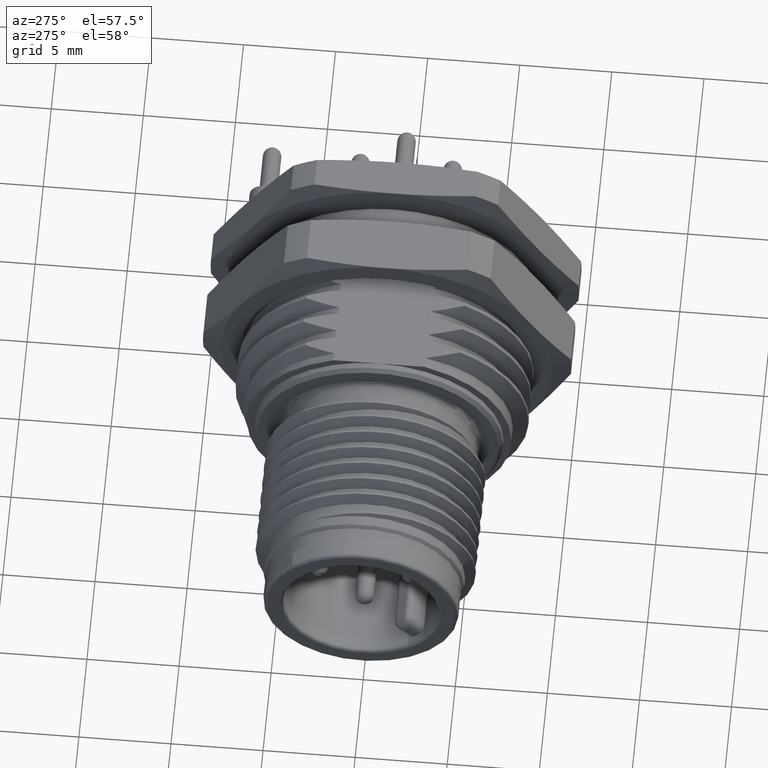
[diagram: clean part render]
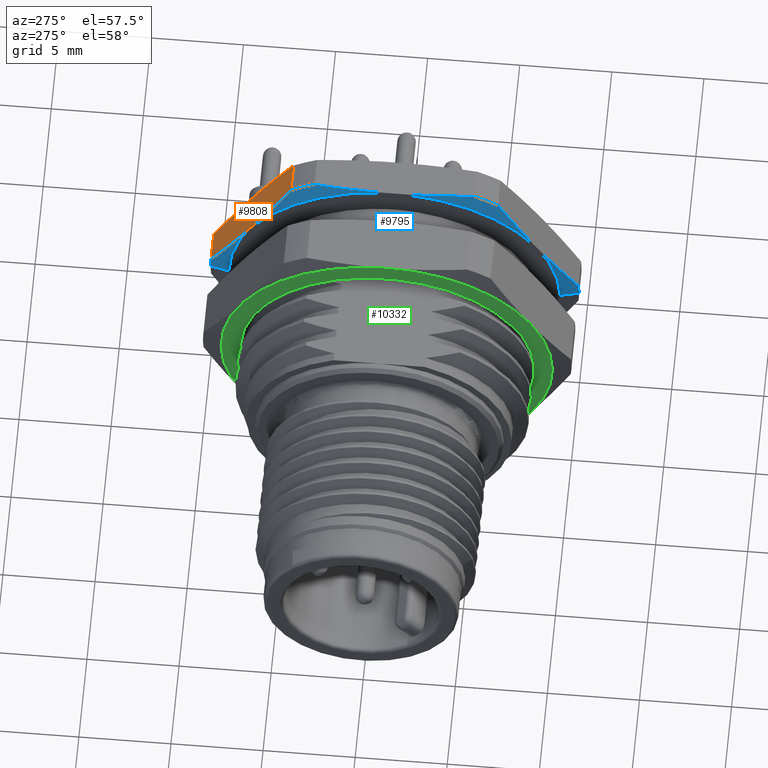
[diagram: same view with three faces highlighted in distinct colors, each labeled with its STEP entity id]
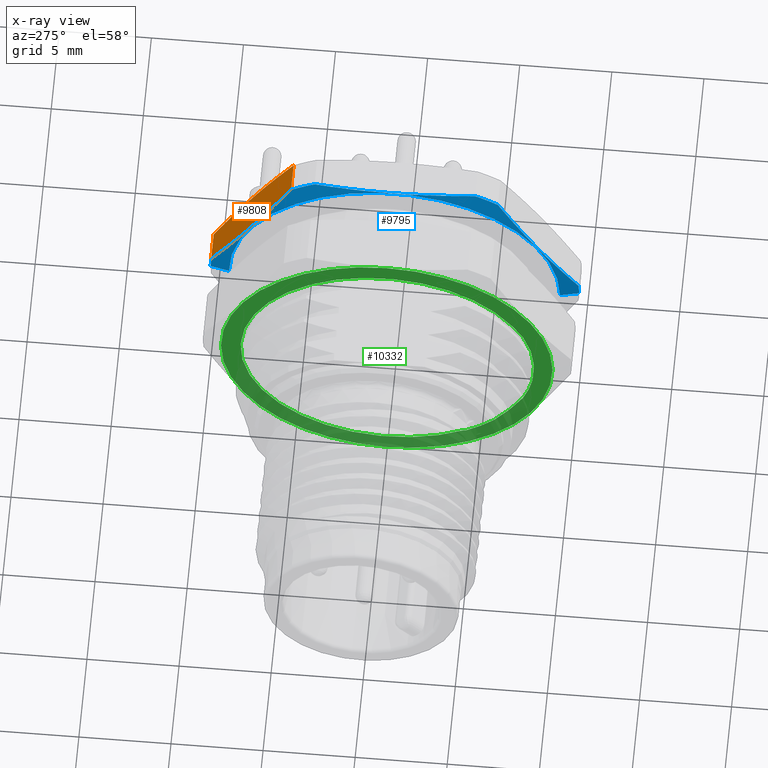
[diagram: x-ray of the same camera — body ghosted, the three highlighted faces saturated]
A machine part, auxiliary view with three faces highlighted in distinct colors.
The next image is the same camera in x-ray (body ghosted, the three faces saturated) — at least one of them is partly hidden behind the body in this view.
Their STEP definitions:

[orange] entity #9808 — the highlighted planar face has unit normal (0, 0.8665, 0.4991).
#953=CARTESIAN_POINT('',(2.118502262467E1,5.638446748229E0,8.258808525894E0));
#954=CARTESIAN_POINT('',(2.122353792520E1,5.846719437160E0,7.897214370785E0));
#955=CARTESIAN_POINT('',(2.129123251506E1,6.261869213681E0,7.176449044061E0));
#956=CARTESIAN_POINT('',(2.136102398915E1,6.876260174027E0,6.109769676001E0));
#957=CARTESIAN_POINT('',(2.139738849243E1,7.495355365573E0,5.034923022472E0));
#958=CARTESIAN_POINT('',(2.139738246194E1,8.116286912928E0,3.956888166346E0));
#959=CARTESIAN_POINT('',(2.136102823910E1,8.735195448974E0,2.882365576130E0));
#960=CARTESIAN_POINT('',(2.129124705241E1,9.349564330789E0,1.815724539873E0));
#961=CARTESIAN_POINT('',(2.122354646418E1,9.764766212043E0,1.094868751133E0));
#962=CARTESIAN_POINT('',(2.118502262467E1,9.973085075787E0,7.331944292832E-1));
#974=CARTESIAN_POINT('',(1.961497737533E1,9.973085075787E0,7.331944292832E-1));
#975=CARTESIAN_POINT('',(1.957645353601E1,9.764766213086E0,1.094868749321E0));
#976=CARTESIAN_POINT('',(1.950875294802E1,9.349564333624E0,1.815724534952E0));
#977=CARTESIAN_POINT('',(1.943897176132E1,8.735195453565E0,2.882365568158E0));
#978=CARTESIAN_POINT('',(1.940261753823E1,8.116286918461E0,3.956888156740E0));
#979=CARTESIAN_POINT('',(1.940261150739E1,7.495355371108E0,5.034923012862E0));
#980=CARTESIAN_POINT('',(1.943897601043E1,6.876260178620E0,6.109769668028E0));
#981=CARTESIAN_POINT('',(1.950876748451E1,6.261869216515E0,7.176449039141E0));
#982=CARTESIAN_POINT('',(1.957646207461E1,5.846719438203E0,7.897214368974E0));
#983=CARTESIAN_POINT('',(1.961497737533E1,5.638446748229E0,8.258808525894E0));
#1030=DIRECTION('',(1.E0,0.E0,0.E0));
#1031=VECTOR('',#1030,1.570045249341E0);
#1032=CARTESIAN_POINT('',(1.961497737533E1,9.973085075787E0,7.331944292832E-1));
#1033=LINE('',#1032,#1031);
#1034=DIRECTION('',(-1.E0,-3.733636067164E-14,-5.543883857304E-14));
#1035=VECTOR('',#1034,1.570045249341E0);
#1036=CARTESIAN_POINT('',(2.118502262467E1,5.638446748229E0,8.258808525894E0));
#1037=LINE('',#1036,#1035);
#8318=CARTESIAN_POINT('',(2.118502262467E1,9.973085075786E0,7.331944292828E-1));
#8320=VERTEX_POINT('',#8318);
#8329=CARTESIAN_POINT('',(2.118502262467E1,5.638446748229E0,8.258808525894E0));
#8331=VERTEX_POINT('',#8329);
#8364=CARTESIAN_POINT('',(1.961497737533E1,9.973085075787E0,7.331944292828E-1));
#8365=VERTEX_POINT('',#8364);
#8366=CARTESIAN_POINT('',(1.961497737533E1,5.638446748229E0,8.258808525895E0));
#8368=VERTEX_POINT('',#8366);
#9796=CARTESIAN_POINT('',(2.040000000002E1,7.805765912009E0,4.496001477589E0));
#9797=DIRECTION('',(0.E0,8.665373526618E-1,4.991122283033E-1));
#9798=DIRECTION('',(0.E0,4.991122283033E-1,-8.665373526618E-1));
#9799=AXIS2_PLACEMENT_3D('',#9796,#9797,#9798);
#9800=PLANE('',#9799);
#9801=ORIENTED_EDGE('',*,*,#9764,.T.);
#9802=ORIENTED_EDGE('',*,*,#9745,.F.);
#9804=ORIENTED_EDGE('',*,*,#9803,.T.);
#9805=ORIENTED_EDGE('',*,*,#9775,.F.);
#9806=EDGE_LOOP('',(#9801,#9802,#9804,#9805));
#9807=FACE_OUTER_BOUND('',#9806,.F.);
#9808=ADVANCED_FACE('',(#9807),#9800,.T.);
#963=B_SPLINE_CURVE_WITH_KNOTS('',3,(#953,#954,#955,#956,#957,#958,#959,#960,
#961,#962),.UNSPECIFIED.,.F.,.F.,(4,1,1,1,1,1,1,4),(0.E0,1.428571428571E-1,
2.857142857143E-1,4.285714285714E-1,5.714285714286E-1,7.142857142857E-1,
8.571428571429E-1,1.E0),.UNSPECIFIED.);
#984=B_SPLINE_CURVE_WITH_KNOTS('',3,(#974,#975,#976,#977,#978,#979,#980,#981,
#982,#983),.UNSPECIFIED.,.F.,.F.,(4,1,1,1,1,1,1,4),(0.E0,1.428571428571E-1,
2.857142857143E-1,4.285714285714E-1,5.714285714286E-1,7.142857142857E-1,
8.571428571429E-1,1.E0),.UNSPECIFIED.);
#9745=EDGE_CURVE('',#8331,#8320,#963,.T.);
#9764=EDGE_CURVE('',#8365,#8320,#1033,.T.);
#9775=EDGE_CURVE('',#8365,#8368,#984,.T.);
#9803=EDGE_CURVE('',#8331,#8368,#1037,.T.);

[blue] entity #9795 — the highlighted conical surface has half-angle 78 deg.
#969=CARTESIAN_POINT('',(1.961497737533E1,0.E0,0.E0));
#970=DIRECTION('',(1.E0,0.E0,0.E0));
#971=DIRECTION('',(0.E0,1.E0,0.E0));
#972=AXIS2_PLACEMENT_3D('',#969,#970,#971);
#974=CARTESIAN_POINT('',(1.961497737533E1,9.973085075787E0,7.331944292832E-1));
#975=CARTESIAN_POINT('',(1.957645353601E1,9.764766213086E0,1.094868749321E0));
#976=CARTESIAN_POINT('',(1.950875294802E1,9.349564333624E0,1.815724534952E0));
#977=CARTESIAN_POINT('',(1.943897176132E1,8.735195453565E0,2.882365568158E0));
#978=CARTESIAN_POINT('',(1.940261753823E1,8.116286918461E0,3.956888156740E0));
#979=CARTESIAN_POINT('',(1.940261150739E1,7.495355371108E0,5.034923012862E0));
#980=CARTESIAN_POINT('',(1.943897601043E1,6.876260178620E0,6.109769668028E0));
#981=CARTESIAN_POINT('',(1.950876748451E1,6.261869216515E0,7.176449039141E0));
#982=CARTESIAN_POINT('',(1.957646207461E1,5.846719438203E0,7.897214368974E0));
#983=CARTESIAN_POINT('',(1.961497737533E1,5.638446748229E0,8.258808525894E0));
#985=CARTESIAN_POINT('',(1.961497737533E1,0.E0,0.E0));
#986=DIRECTION('',(1.E0,0.E0,0.E0));
#987=DIRECTION('',(0.E0,5.638446748229E-1,8.258808525894E-1));
#988=AXIS2_PLACEMENT_3D('',#985,#986,#987);
#990=CARTESIAN_POINT('',(1.961497737533E1,4.358898943541E0,9.E0));
#991=CARTESIAN_POINT('',(1.957614776089E1,3.939804636421E0,9.E0));
#992=CARTESIAN_POINT('',(1.950790475155E1,3.104585889133E0,9.E0));
#993=CARTESIAN_POINT('',(1.943756297563E1,1.869105168461E0,9.E0));
#994=CARTESIAN_POINT('',(1.940090487455E1,6.244499077092E-1,9.E0));
#995=CARTESIAN_POINT('',(1.940089928337E1,-6.242588316583E-1,9.E0));
#996=CARTESIAN_POINT('',(1.943756753646E1,-1.869217143358E0,9.E0));
#997=CARTESIAN_POINT('',(1.950789930084E1,-3.104489832583E0,9.E0));
#998=CARTESIAN_POINT('',(1.957614450381E1,-3.939769482272E0,9.E0));
#999=CARTESIAN_POINT('',(1.961497737533E1,-4.358898943541E0,9.E0));
#1001=CARTESIAN_POINT('',(1.961497737533E1,0.E0,0.E0));
#1002=DIRECTION('',(1.E0,0.E0,0.E0));
#1003=DIRECTION('',(0.E0,-4.358898943541E-1,9.E-1));
#1004=AXIS2_PLACEMENT_3D('',#1001,#1002,#1003);
#1006=CARTESIAN_POINT('',(1.961497737533E1,-5.597806986747E0,8.286407963595E0));
#1007=CARTESIAN_POINT('',(1.957613763252E1,-5.808152452284E0,7.923797340947E0));
#1008=CARTESIAN_POINT('',(1.950788756317E1,-6.227314323446E0,7.201212013496E0));
#1009=CARTESIAN_POINT('',(1.943756301512E1,-6.847140901064E0,6.132704543320E0));
#1010=CARTESIAN_POINT('',(1.940090539132E1,-7.471641063433E0,5.056140367607E0));
#1011=CARTESIAN_POINT('',(1.940089883659E1,-8.098211886740E0,3.976006618144E0));
#1012=CARTESIAN_POINT('',(1.943756715869E1,-8.722930211779E0,2.899066355876E0));
#1013=CARTESIAN_POINT('',(1.950791706711E1,-9.342871602914E0,1.830360960821E0));
#1014=CARTESIAN_POINT('',(1.957615500108E1,-9.761919614886E0,1.107971913100E0));
#1015=CARTESIAN_POINT('',(1.961497737533E1,-9.972171017071E0,
7.455234445081E-1));
#1017=CARTESIAN_POINT('',(1.961497737533E1,0.E0,0.E0));
#1018=DIRECTION('',(1.E0,0.E0,0.E0));
#1019=DIRECTION('',(0.E0,-9.972171017070E-1,7.455234445076E-2));
#1020=AXIS2_PLACEMENT_3D('',#1017,#1018,#1019);
#1022=DIRECTION('',(-2.079116908136E-1,9.781476007347E-1,0.E0));
#1023=VECTOR('',#1022,1.033984065477E0);
#1024=CARTESIAN_POINT('',(1.961497737533E1,-1.E1,0.E0));
#1025=LINE('',#1024,#1023);
#1026=DIRECTION('',(2.079116908136E-1,9.781476007347E-1,0.E0));
#1027=VECTOR('',#1026,1.033984065477E0);
#1028=CARTESIAN_POINT('',(1.94E1,8.988610967156E0,0.E0));
#1029=LINE('',#1028,#1027);
#1207=CARTESIAN_POINT('',(1.94E1,0.E0,0.E0));
#1208=DIRECTION('',(1.E0,0.E0,0.E0));
#1209=DIRECTION('',(0.E0,1.E0,0.E0));
#1210=AXIS2_PLACEMENT_3D('',#1207,#1208,#1209);
#8352=CARTESIAN_POINT('',(1.961497737533E1,-1.E1,0.E0));
#8354=VERTEX_POINT('',#8352);
#8358=CARTESIAN_POINT('',(1.961497737533E1,1.E1,0.E0));
#8359=VERTEX_POINT('',#8358);
#8360=CARTESIAN_POINT('',(1.94E1,8.988610967156E0,0.E0));
#8361=VERTEX_POINT('',#8360);
#8362=CARTESIAN_POINT('',(1.94E1,-8.988610967156E0,0.E0));
#8363=VERTEX_POINT('',#8362);
#8364=CARTESIAN_POINT('',(1.961497737533E1,9.973085075787E0,7.331944292828E-1));
#8365=VERTEX_POINT('',#8364);
#8366=CARTESIAN_POINT('',(1.961497737533E1,5.638446748229E0,8.258808525895E0));
#8367=CARTESIAN_POINT('',(1.961497737533E1,4.358898943541E0,9.E0));
#8368=VERTEX_POINT('',#8366);
#8369=VERTEX_POINT('',#8367);
#8370=CARTESIAN_POINT('',(1.961497737533E1,-4.358898943541E0,9.E0));
#8371=CARTESIAN_POINT('',(1.961497737533E1,-5.597806986747E0,8.286407963595E0));
#8372=VERTEX_POINT('',#8370);
#8373=VERTEX_POINT('',#8371);
#8374=CARTESIAN_POINT('',(1.961497737533E1,-9.972171017070E0,
7.455234445076E-1));
#8375=VERTEX_POINT('',#8374);
#9769=CARTESIAN_POINT('',(1.950748868766E1,0.E0,0.E0));
#9770=DIRECTION('',(1.E0,0.E0,0.E0));
#9771=DIRECTION('',(0.E0,-1.E0,0.E0));
#9772=AXIS2_PLACEMENT_3D('',#9769,#9770,#9771);
#9773=CONICAL_SURFACE('',#9772,9.494305483578E0,7.800000000031E1);
#9774=ORIENTED_EDGE('',*,*,#9755,.T.);
#9776=ORIENTED_EDGE('',*,*,#9775,.T.);
#9778=ORIENTED_EDGE('',*,*,#9777,.T.);
#9780=ORIENTED_EDGE('',*,*,#9779,.T.);
#9782=ORIENTED_EDGE('',*,*,#9781,.T.);
#9784=ORIENTED_EDGE('',*,*,#9783,.T.);
#9786=ORIENTED_EDGE('',*,*,#9785,.T.);
#9788=ORIENTED_EDGE('',*,*,#9787,.T.);
#9790=ORIENTED_EDGE('',*,*,#9789,.F.);
#9792=ORIENTED_EDGE('',*,*,#9791,.T.);
#9793=EDGE_LOOP('',(#9774,#9776,#9778,#9780,#9782,#9784,#9786,#9788,#9790,
#9792));
#9794=FACE_OUTER_BOUND('',#9793,.F.);
#9795=ADVANCED_FACE('',(#9794),#9773,.T.);
#973=CIRCLE('',#972,1.E1);
#984=B_SPLINE_CURVE_WITH_KNOTS('',3,(#974,#975,#976,#977,#978,#979,#980,#981,
#982,#983),.UNSPECIFIED.,.F.,.F.,(4,1,1,1,1,1,1,4),(0.E0,1.428571428571E-1,
2.857142857143E-1,4.285714285714E-1,5.714285714286E-1,7.142857142857E-1,
8.571428571429E-1,1.E0),.UNSPECIFIED.);
#989=CIRCLE('',#988,1.E1);
#1000=B_SPLINE_CURVE_WITH_KNOTS('',3,(#990,#991,#992,#993,#994,#995,#996,#997,
#998,#999),.UNSPECIFIED.,.F.,.F.,(4,1,1,1,1,1,1,4),(0.E0,1.428571428571E-1,
2.857142857143E-1,4.285714285714E-1,5.714285714286E-1,7.142857142857E-1,
8.571428571429E-1,1.E0),.UNSPECIFIED.);
#1005=CIRCLE('',#1004,1.E1);
#1016=B_SPLINE_CURVE_WITH_KNOTS('',3,(#1006,#1007,#1008,#1009,#1010,#1011,#1012,
#1013,#1014,#1015),.UNSPECIFIED.,.F.,.F.,(4,1,1,1,1,1,1,4),(0.E0,
1.428571428571E-1,2.857142857143E-1,4.285714285714E-1,5.714285714286E-1,
7.142857142857E-1,8.571428571429E-1,1.E0),.UNSPECIFIED.);
#1021=CIRCLE('',#1020,1.E1);
#1211=CIRCLE('',#1210,8.988610967156E0);
#9755=EDGE_CURVE('',#8359,#8365,#973,.T.);
#9775=EDGE_CURVE('',#8365,#8368,#984,.T.);
#9777=EDGE_CURVE('',#8368,#8369,#989,.T.);
#9779=EDGE_CURVE('',#8369,#8372,#1000,.T.);
#9781=EDGE_CURVE('',#8372,#8373,#1005,.T.);
#9783=EDGE_CURVE('',#8373,#8375,#1016,.T.);
#9785=EDGE_CURVE('',#8375,#8354,#1021,.T.);
#9787=EDGE_CURVE('',#8354,#8363,#1025,.T.);
#9789=EDGE_CURVE('',#8361,#8363,#1211,.T.);
#9791=EDGE_CURVE('',#8361,#8359,#1029,.T.);

[green] entity #10332 — the highlighted planar face has unit normal (1, 0, 0).
#1385=DIRECTION('',(3.323986519395E-12,-1.E0,2.818495481884E-12));
#1386=VECTOR('',#1385,1.159660040438E-1);
#1387=CARTESIAN_POINT('',(1.46E1,-4.177241194854E0,-6.75E0));
#1388=LINE('',#1387,#1386);
#1448=CARTESIAN_POINT('',(1.46E1,0.E0,0.E0));
#1449=DIRECTION('',(1.E0,0.E0,0.E0));
#1450=DIRECTION('',(0.E0,-8.658096610435E-1,5.003734913479E-1));
#1451=AXIS2_PLACEMENT_3D('',#1448,#1449,#1450);
#1453=CARTESIAN_POINT('',(1.46E1,0.E0,0.E0));
#1454=DIRECTION('',(1.E0,0.E0,0.E0));
#1455=DIRECTION('',(0.E0,-8.662409854032E-1,-4.996264156425E-1));
#1456=AXIS2_PLACEMENT_3D('',#1453,#1454,#1455);
#1458=CARTESIAN_POINT('',(1.46E1,0.E0,0.E0));
#1459=DIRECTION('',(1.E0,0.E0,0.E0));
#1460=DIRECTION('',(0.E0,-4.313243596997E-4,-9.999999069796E-1));
#1461=AXIS2_PLACEMENT_3D('',#1458,#1459,#1460);
#1463=CARTESIAN_POINT('',(1.46E1,0.E0,0.E0));
#1464=DIRECTION('',(1.E0,0.E0,0.E0));
#1465=DIRECTION('',(0.E0,8.658096610435E-1,-5.003734913480E-1));
#1466=AXIS2_PLACEMENT_3D('',#1463,#1464,#1465);
#1468=CARTESIAN_POINT('',(1.46E1,0.E0,0.E0));
#1469=DIRECTION('',(1.E0,0.E0,0.E0));
#1470=DIRECTION('',(0.E0,9.999999069796E-1,-4.313244527671E-4));
#1471=AXIS2_PLACEMENT_3D('',#1468,#1469,#1470);
#1473=CARTESIAN_POINT('',(1.46E1,0.E0,0.E0));
#1474=DIRECTION('',(1.E0,0.E0,0.E0));
#1475=DIRECTION('',(0.E0,8.662409854032E-1,4.996264156425E-1));
#1476=AXIS2_PLACEMENT_3D('',#1473,#1474,#1475);
#1478=CARTESIAN_POINT('',(1.46E1,0.E0,0.E0));
#1479=DIRECTION('',(1.E0,0.E0,0.E0));
#1480=DIRECTION('',(0.E0,4.313243596830E-4,9.999999069796E-1));
#1481=AXIS2_PLACEMENT_3D('',#1478,#1479,#1480);
#1483=CARTESIAN_POINT('',(1.46E1,0.E0,0.E0));
#1484=DIRECTION('',(-1.E0,0.E0,0.E0));
#1485=DIRECTION('',(0.E0,-8.195653250275E-1,-5.729857572510E-1));
#1486=AXIS2_PLACEMENT_3D('',#1483,#1484,#1485);
#1504=CARTESIAN_POINT('',(1.46E1,-7.796168868643E0,-4.496637740763E0));
#1719=CARTESIAN_POINT('',(1.46E1,-3.881919240328E-3,-8.999999162820E0));
#1904=CARTESIAN_POINT('',(1.459992037564E1,-6.795893613042E0,4.102065834945E0));
#1905=CARTESIAN_POINT('',(1.459992037564E1,-6.870660487587E0,3.991702568296E0));
#1906=CARTESIAN_POINT('',(1.460003687697E1,-7.014078413820E0,3.767530428753E0));
#1907=CARTESIAN_POINT('',(1.459999036714E1,-7.212535382857E0,3.421280478472E0));
#1908=CARTESIAN_POINT('',(1.459999789202E1,-7.332358032771E0,3.184439914979E0));
#1909=CARTESIAN_POINT('',(1.459999789202E1,-7.389508797288E0,3.064567858644E0));
#2041=CARTESIAN_POINT('',(1.46E1,0.E0,0.E0));
#2042=DIRECTION('',(1.E0,0.E0,0.E0));
#2043=DIRECTION('',(0.E0,-5.262334586614E-1,-8.503401360545E-1));
#2044=AXIS2_PLACEMENT_3D('',#2041,#2042,#2043);
#2046=CARTESIAN_POINT('',(1.46E1,-6.505709550068E0,-4.548360941059E0));
#2047=CARTESIAN_POINT('',(1.46E1,-6.401903470257E0,-4.714701905811E0));
#2048=CARTESIAN_POINT('',(1.46E1,-6.181555910091E0,-5.040508334357E0));
#2049=CARTESIAN_POINT('',(1.46E1,-5.935092056126E0,-5.352266618569E0));
#2050=CARTESIAN_POINT('',(1.46E1,-5.805079739604E0,-5.504398004694E0));
#2095=CARTESIAN_POINT('',(1.46E1,-5.805079739604E0,-5.504398004694E0));
#2096=CARTESIAN_POINT('',(1.46E1,-5.561941519325E0,-5.761020178015E0));
#2097=CARTESIAN_POINT('',(1.46E1,-5.061668299229E0,-6.220809475898E0));
#2098=CARTESIAN_POINT('',(1.46E1,-4.550076955678E0,-6.586648824860E0));
#2099=CARTESIAN_POINT('',(1.46E1,-4.293207198898E0,-6.75E0));
#4911=CARTESIAN_POINT('',(1.460004665077E1,-7.392038711148E0,
-3.058143778804E0));
#4912=CARTESIAN_POINT('',(1.460004665077E1,-7.334674870565E0,
-3.178871639573E0));
#4913=CARTESIAN_POINT('',(1.459997827699E1,-7.214447894296E0,
-3.416793765722E0));
#4914=CARTESIAN_POINT('',(1.460000605438E1,-7.016379525494E0,
-3.763272923675E0));
#4915=CARTESIAN_POINT('',(1.460000035511E1,-6.873609150003E0,
-3.986484569527E0));
#4916=CARTESIAN_POINT('',(1.460000035511E1,-6.799467693321E0,
-4.096227512300E0));
#5234=CARTESIAN_POINT('',(1.459999789202E1,-7.389508797288E0,3.064567858644E0));
#5235=CARTESIAN_POINT('',(1.459999789202E1,-7.551385170445E0,2.674666342286E0));
#5236=CARTESIAN_POINT('',(1.460000142476E1,-7.809755358661E0,1.880567252335E0));
#5237=CARTESIAN_POINT('',(1.459999817530E1,-8.007146888918E0,
6.336881461111E-1));
#5238=CARTESIAN_POINT('',(1.460000587405E1,-8.007973191220E0,
-6.256092321728E-1));
#5239=CARTESIAN_POINT('',(1.459997832851E1,-7.811548156692E0,
-1.873061463910E0));
#5240=CARTESIAN_POINT('',(1.460004665077E1,-7.553646546177E0,
-2.667801496255E0));
#5241=CARTESIAN_POINT('',(1.460004665077E1,-7.392038711148E0,
-3.058143778804E0));
#5301=CARTESIAN_POINT('',(1.46E1,7.792286949403E0,-4.503361422118E0));
#5322=CARTESIAN_POINT('',(1.46E1,3.881919240247E-3,8.999999162820E0));
#5343=CARTESIAN_POINT('',(1.46E1,-7.792286949403E0,4.503361422118E0));
#9112=VERTEX_POINT('',#5322);
#9113=CARTESIAN_POINT('',(1.46E1,7.796168868628E0,4.496637740782E0));
#9114=VERTEX_POINT('',#9113);
#9119=VERTEX_POINT('',#5343);
#9120=VERTEX_POINT('',#1504);
#9125=VERTEX_POINT('',#1719);
#9130=VERTEX_POINT('',#5301);
#9131=VERTEX_POINT('',#4911);
#9132=VERTEX_POINT('',#4916);
#9133=VERTEX_POINT('',#5234);
#9134=VERTEX_POINT('',#1904);
#9135=CARTESIAN_POINT('',(1.46E1,8.999999162816E0,-3.881920074904E-3));
#9136=VERTEX_POINT('',#9135);
#9179=CARTESIAN_POINT('',(1.46E1,-4.177241194854E0,-6.75E0));
#9180=CARTESIAN_POINT('',(1.46E1,-4.293207198898E0,-6.75E0));
#9181=VERTEX_POINT('',#9179);
#9182=VERTEX_POINT('',#9180);
#9218=VERTEX_POINT('',#2095);
#9219=VERTEX_POINT('',#2046);
#10294=CARTESIAN_POINT('',(1.46E1,-3.703837784519E-3,1.597555954191E-6));
#10295=DIRECTION('',(1.E0,0.E0,0.E0));
#10296=DIRECTION('',(0.E0,9.999999069796E-1,-4.313244527779E-4));
#10297=AXIS2_PLACEMENT_3D('',#10294,#10295,#10296);
#10298=PLANE('',#10297);
#10300=ORIENTED_EDGE('',*,*,#10299,.T.);
#10302=ORIENTED_EDGE('',*,*,#10301,.T.);
#10304=ORIENTED_EDGE('',*,*,#10303,.T.);
#10306=ORIENTED_EDGE('',*,*,#10305,.T.);
#10308=ORIENTED_EDGE('',*,*,#10307,.T.);
#10310=ORIENTED_EDGE('',*,*,#10309,.T.);
#10312=ORIENTED_EDGE('',*,*,#10311,.T.);
#10313=EDGE_LOOP('',(#10300,#10302,#10304,#10306,#10308,#10310,#10312));
#10314=FACE_OUTER_BOUND('',#10313,.F.);
#10315=ORIENTED_EDGE('',*,*,#10204,.T.);
#10317=ORIENTED_EDGE('',*,*,#10316,.F.);
#10319=ORIENTED_EDGE('',*,*,#10318,.F.);
#10321=ORIENTED_EDGE('',*,*,#10320,.T.);
#10323=ORIENTED_EDGE('',*,*,#10322,.F.);
#10325=ORIENTED_EDGE('',*,*,#10324,.F.);
#10327=ORIENTED_EDGE('',*,*,#10326,.F.);
#10329=ORIENTED_EDGE('',*,*,#10328,.F.);
#10330=EDGE_LOOP('',(#10315,#10317,#10319,#10321,#10323,#10325,#10327,#10329));
#10331=FACE_BOUND('',#10330,.F.);
#10332=ADVANCED_FACE('',(#10314,#10331),#10298,.F.);
#1452=CIRCLE('',#1451,8.999999999999E0);
#1457=CIRCLE('',#1456,8.999999999999E0);
#1462=CIRCLE('',#1461,8.999999999999E0);
#1467=CIRCLE('',#1466,8.999999999999E0);
#1472=CIRCLE('',#1471,8.999999999999E0);
#1477=CIRCLE('',#1476,8.999999999999E0);
#1482=CIRCLE('',#1481,8.999999999999E0);
#1487=CIRCLE('',#1486,7.938E0);
#1910=B_SPLINE_CURVE_WITH_KNOTS('',3,(#1904,#1905,#1906,#1907,#1908,#1909),
.UNSPECIFIED.,.F.,.F.,(4,1,1,4),(0.E0,3.333333333333E-1,6.666666666667E-1,1.E0),
.UNSPECIFIED.);
#2045=CIRCLE('',#2044,7.937999999999E0);
#2051=B_SPLINE_CURVE_WITH_KNOTS('',3,(#2046,#2047,#2048,#2049,#2050),
.UNSPECIFIED.,.F.,.F.,(4,1,4),(0.E0,5.E-1,1.E0),.UNSPECIFIED.);
#2100=B_SPLINE_CURVE_WITH_KNOTS('',3,(#2095,#2096,#2097,#2098,#2099),
.UNSPECIFIED.,.F.,.F.,(4,1,4),(0.E0,5.E-1,1.E0),.UNSPECIFIED.);
#4917=B_SPLINE_CURVE_WITH_KNOTS('',3,(#4911,#4912,#4913,#4914,#4915,#4916),
.UNSPECIFIED.,.F.,.F.,(4,1,1,4),(0.E0,3.333333333333E-1,6.666666666667E-1,1.E0),
.UNSPECIFIED.);
#5242=B_SPLINE_CURVE_WITH_KNOTS('',3,(#5234,#5235,#5236,#5237,#5238,#5239,#5240,
#5241),.UNSPECIFIED.,.F.,.F.,(4,1,1,1,1,4),(0.E0,2.E-1,4.E-1,6.E-1,8.E-1,1.E0),
.UNSPECIFIED.);
#10204=EDGE_CURVE('',#9181,#9182,#1388,.T.);
#10299=EDGE_CURVE('',#9119,#9120,#1452,.T.);
#10301=EDGE_CURVE('',#9120,#9125,#1457,.T.);
#10303=EDGE_CURVE('',#9125,#9130,#1462,.T.);
#10305=EDGE_CURVE('',#9130,#9136,#1467,.T.);
#10307=EDGE_CURVE('',#9136,#9114,#1472,.T.);
#10309=EDGE_CURVE('',#9114,#9112,#1477,.T.);
#10311=EDGE_CURVE('',#9112,#9119,#1482,.T.);
#10316=EDGE_CURVE('',#9218,#9182,#2100,.T.);
#10318=EDGE_CURVE('',#9219,#9218,#2051,.T.);
#10320=EDGE_CURVE('',#9219,#9132,#1487,.T.);
#10322=EDGE_CURVE('',#9131,#9132,#4917,.T.);
#10324=EDGE_CURVE('',#9133,#9131,#5242,.T.);
#10326=EDGE_CURVE('',#9134,#9133,#1910,.T.);
#10328=EDGE_CURVE('',#9181,#9134,#2045,.T.);